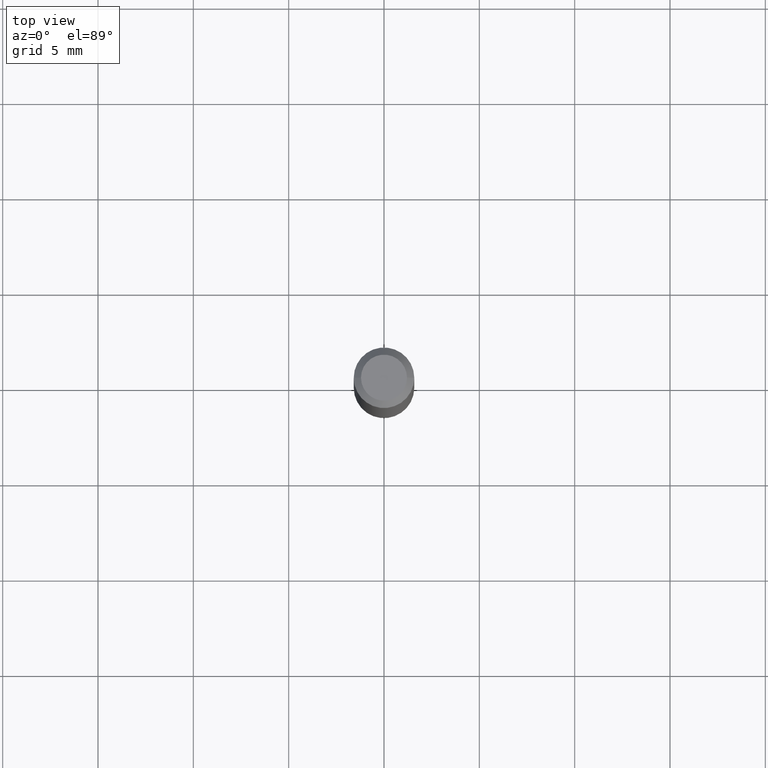
[diagram: clean part render]
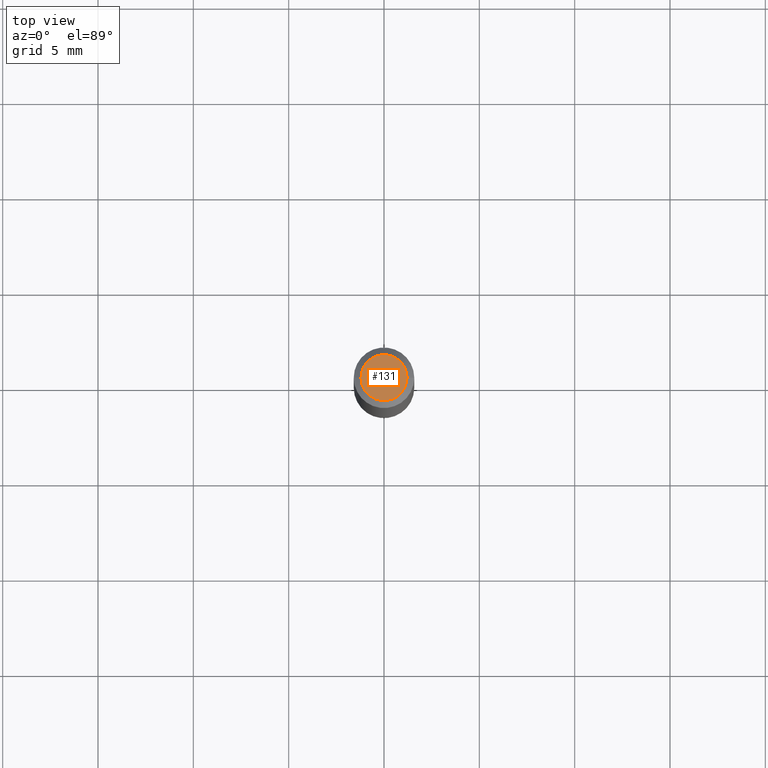
[diagram: same view with one face highlighted and labeled with its STEP entity id]
A machine part, top view. The second image highlights one B-rep face of the part: STEP entity #131.
In plain terms, the highlighted planar face has unit normal (0, -0, -1).
Its self-contained STEP definition (entity closure, byte-faithful):
#17 = EDGE_CURVE ( 'NONE', #92, #156, #153, .T. ) ;
#47 = FACE_OUTER_BOUND ( 'NONE', #119, .T. ) ;
#92 = VERTEX_POINT ( 'NONE', #216 ) ;
#95 = DIRECTION ( 'NONE',  ( 1.000000000000000000, -6.982962677686267499E-15, 4.852736867747366768E-29 ) ) ;
#119 = EDGE_LOOP ( 'NONE', ( #291, #415 ) ) ;
#122 = PLANE ( 'NONE',  #451 ) ;
#131 = ADVANCED_FACE ( 'NONE', ( #47 ), #122, .F. ) ;
#148 = DIRECTION ( 'NONE',  ( 1.000000000000000000, -6.982962677686267499E-15, 4.852736867747366768E-29 ) ) ;
#149 = DIRECTION ( 'NONE',  ( -2.445468806185136597E-29, 3.491481338843145583E-15, 1.000000000000000000 ) ) ;
#153 = CIRCLE ( 'NONE', #279, 0.04749999999999999362 ) ;
#156 = VERTEX_POINT ( 'NONE', #379 ) ;
#206 = DIRECTION ( 'NONE',  ( -2.445468806185136597E-29, 3.491481338843145583E-15, 1.000000000000000000 ) ) ;
#216 = CARTESIAN_POINT ( 'NONE',  ( -0.04749999999999999362, 3.578768372314206562E-16, -1.989643822619551895E-16 ) ) ;
#261 = AXIS2_PLACEMENT_3D ( 'NONE', #418, #206, #95 ) ;
#279 = AXIS2_PLACEMENT_3D ( 'NONE', #392, #149, #148 ) ;
#291 = ORIENTED_EDGE ( 'NONE', *, *, #17, .T. ) ;
#297 = DIRECTION ( 'NONE',  ( -1.000000000000000000, 6.982962677686265922E-15, -4.876176775795935793E-29 ) ) ;
#333 = DIRECTION ( 'NONE',  ( 2.438088387897960049E-29, -3.491481338843145188E-15, -1.000000000000000000 ) ) ;
#339 = CIRCLE ( 'NONE', #261, 0.04749999999999999362 ) ;
#341 = CARTESIAN_POINT ( 'NONE',  ( 3.316907271900976096E-16, 0.04749999999999999362, -2.653275547260257586E-16 ) ) ;
#379 = CARTESIAN_POINT ( 'NONE',  ( 0.04749999999999999362, -4.035134999187581581E-16, -1.989643822619502098E-16 ) ) ;
#392 = CARTESIAN_POINT ( 'NONE',  ( 4.865611903635008365E-45, -6.946804277620623666E-31, -1.989643822619527736E-16 ) ) ;
#415 = ORIENTED_EDGE ( 'NONE', *, *, #429, .T. ) ;
#418 = CARTESIAN_POINT ( 'NONE',  ( 4.865611903635008365E-45, -6.946804277620623666E-31, -1.989643822619527736E-16 ) ) ;
#429 = EDGE_CURVE ( 'NONE', #156, #92, #339, .T. ) ;
#451 = AXIS2_PLACEMENT_3D ( 'NONE', #341, #333, #297 ) ;